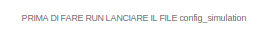
[diagram: root canvas - part 1/4, top left region]
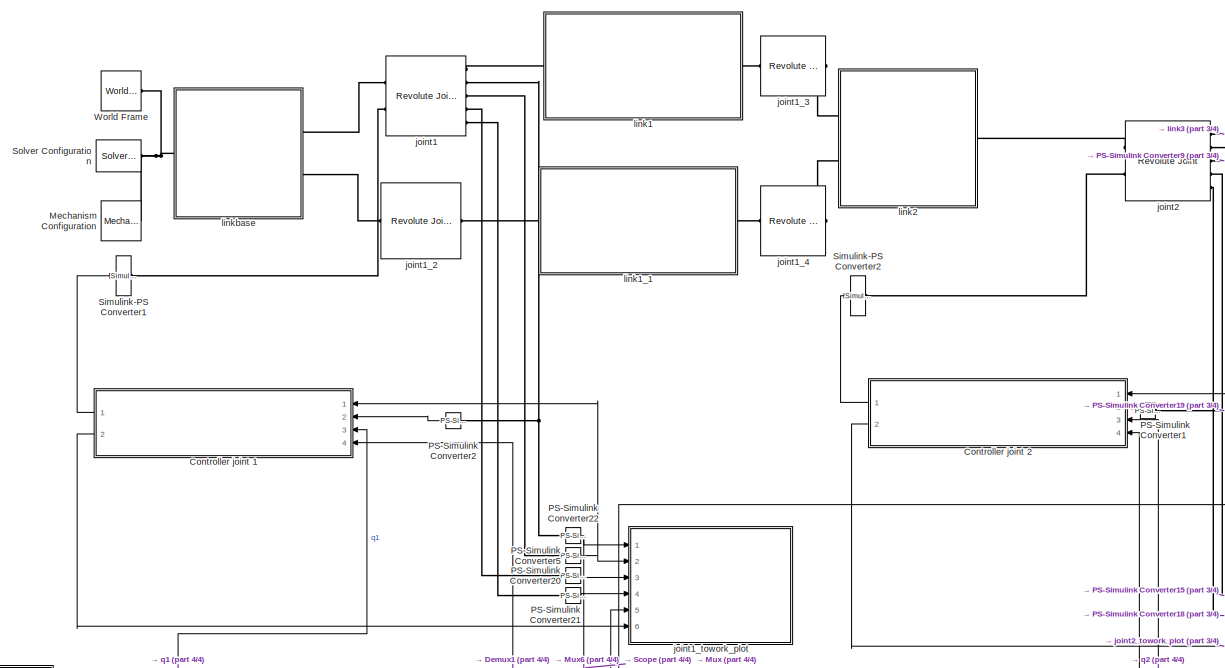
[diagram: root canvas - part 2/4, central region]
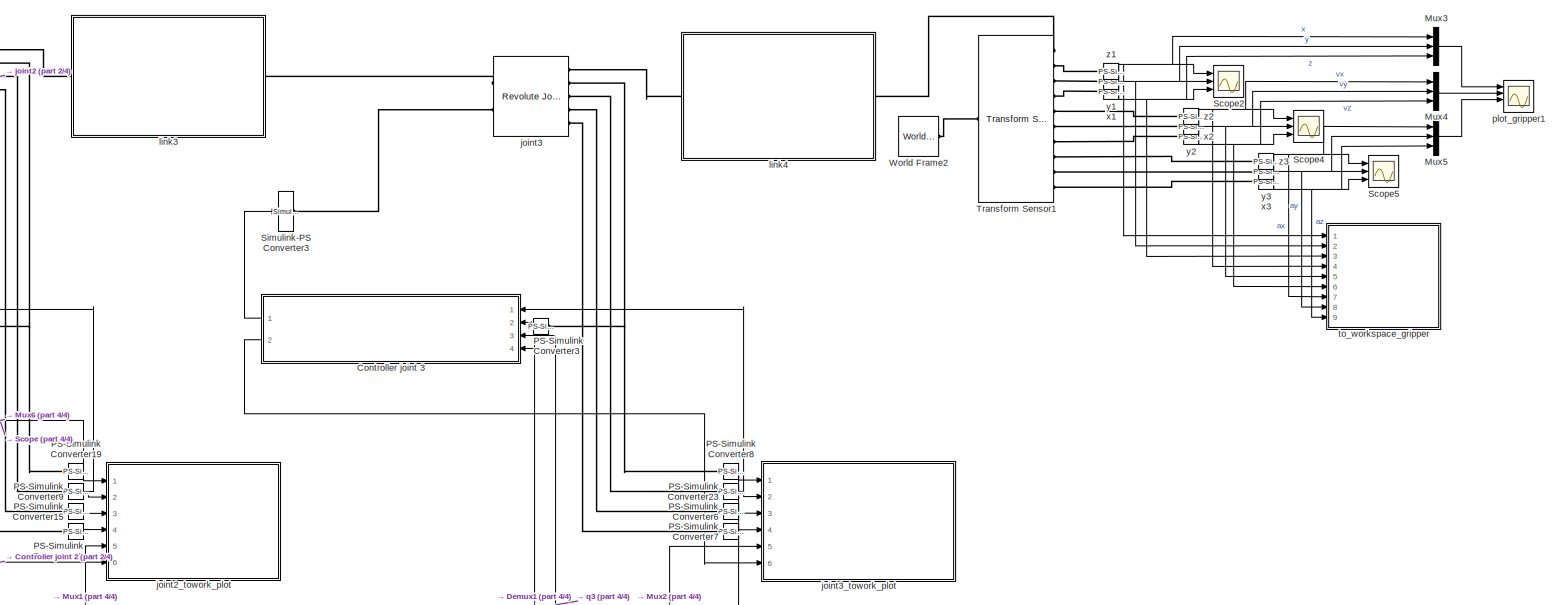
[diagram: root canvas - part 3/4, middle right region]
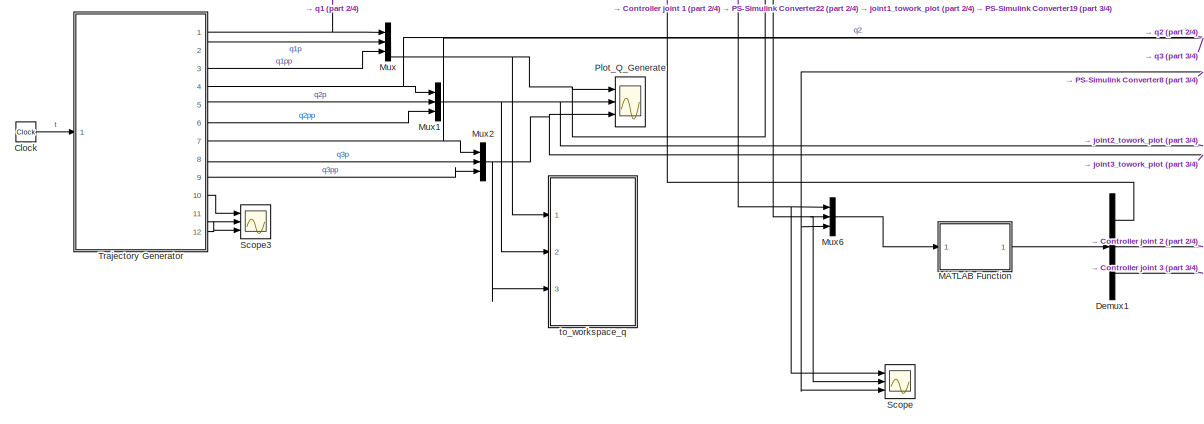
[diagram: root canvas - part 4/4, bottom left region]
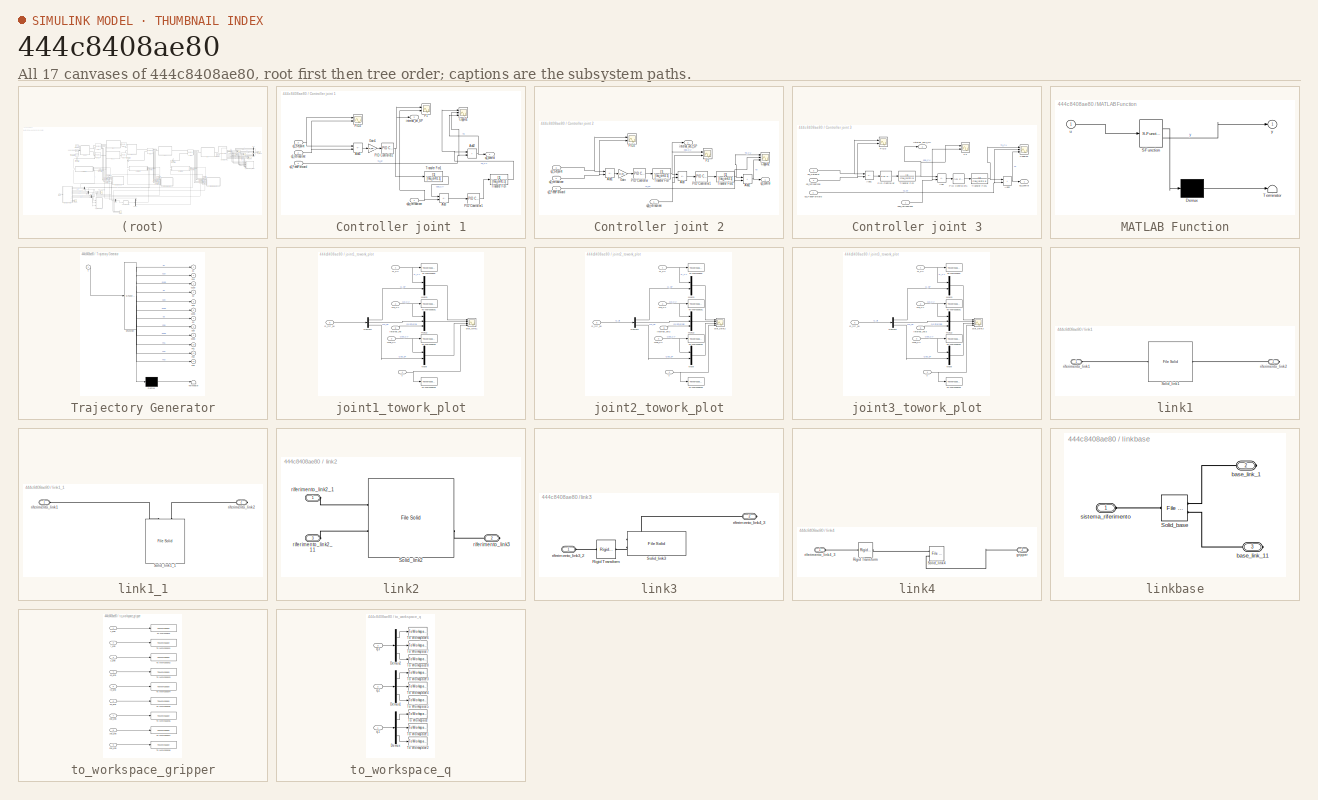
[diagram: thumbnail index - all 17 canvases of the model, root first then tree order]
MODEL slx_444c8408ae80
KIND model
CONFIG AbsTol = auto
CONFIG EnableMultiTasking = off
CONFIG FixedStep = auto
CONFIG MaxStep = 0.01
CONFIG MinStep = auto
CONFIG RelTol = 1e-12
CONFIG SampleTimeConstraint = Unconstrained
CONFIG SolverName = ode15s
CONFIG StartTime = 0.0
CONFIG StopTime = 21.3018
BLOCK [Clock] Clock
BLOCK [SubSystem] Controller joint 1
  Ports = [4, 2]
  RequestExecContextInheritance = off
BLOCK [Sum] Controller joint 1/Add
  IconShape = rectangular
  Inputs = +-
  Ports = [2, 1]
BLOCK [Sum] Controller joint 1/Add1
  IconShape = rectangular
  Inputs = +-
  Ports = [2, 1]
BLOCK [Sum] Controller joint 1/Add2
  IconShape = rectangular
  Ports = [2, 1]
BLOCK [Scope] Controller joint 1/Coppia1
  Floating = off
  NumInputPorts = 3
  Ports = [3]
  ScopeSpecificationString = Simulink.scopes.TimeScopeBlockCfg('CurrentConfiguration', extmgr.ConfigurationSet(extmgr.Configuration('Core','General UI',true),extmgr.Configuration('Core','Source UI',true),extmgr.Configuration('Sources','WiredSimulink',true,'DataLoggingVariableName','ScopeData1'),extmgr.Configuration('Visuals','Time Domain',true,'SerializedDisplays',{struct('MinYLimReal','-0.00344','MaxYLimReal','0.00087','YLab...<+1543ch>
BLOCK [Gain] Controller joint 1/Gain1
  Gain = Ke_joint1
BLOCK [Scope] Controller joint 1/P1
  Floating = off
  NumInputPorts = 2
  Ports = [2]
  ScopeSpecificationString = Simulink.scopes.TimeScopeBlockCfg('CurrentConfiguration', extmgr.ConfigurationSet(extmgr.Configuration('Core','General UI',true),extmgr.Configuration('Core','Source UI',true),extmgr.Configuration('Sources','WiredSimulink',true,'DataLoggingVariableName','ScopeData1'),extmgr.Configuration('Visuals','Time Domain',true,'SerializedDisplays',{struct('MinYLimReal','-1.4759','MaxYLimReal','1.62683','YLabe...<+1533ch>
BLOCK [Reference] Controller joint 1/PID Controller1  REF=pid_lib/PID Controller
  Ports = [1, 1]
  SourceBlock = pid_lib/PID Controller
  SourceProductBaseCode = SL
  SourceType = PID 1dof
BLOCK [Reference] Controller joint 1/PID Controller2  REF=pid_lib/PID Controller
  Ports = [1, 1]
  SourceBlock = pid_lib/PID Controller
  SourceProductBaseCode = SL
  SourceType = PID 1dof
BLOCK [Scope] Controller joint 1/PID2
  Floating = off
  NumInputPorts = 2
  Ports = [2]
  ScopeSpecificationString = Simulink.scopes.TimeScopeBlockCfg('CurrentConfiguration', extmgr.ConfigurationSet(extmgr.Configuration('Core','General UI',true,'FigureColor',[0.247058823529412 0.247058823529412 0.247058823529412]),extmgr.Configuration('Core','Source UI',true),extmgr.Configuration('Sources','WiredSimulink',true,'DataLoggingVariableName','ScopeData1'),extmgr.Configuration('Visuals','Time Domain',true,'SerializedDi...<+1434ch>
BLOCK [TransferFcn] Controller joint 1/Transfer Fcn
  Denominator = [tau_joint1 1]
BLOCK [TransferFcn] Controller joint 1/Transfer Fcn1
  Denominator = [tau_joint1 1]
BLOCK [Outport] Controller joint 1/internal_vel_SP
  Port = 2
BLOCK [Inport] Controller joint 1/q1_FeedForward
  Port = 4
BLOCK [Inport] Controller joint 1/q1_Setpoint
  Port = 3
BLOCK [Outport] Controller joint 1/q1_control
  NameLocation = top
BLOCK [Inport] Controller joint 1/q1_retroazione
  Port = 2
BLOCK [Inport] Controller joint 1/q1p_retroazione
BLOCK [SubSystem] Controller joint 2
  Ports = [4, 2]
  RequestExecContextInheritance = off
BLOCK [Sum] Controller joint 2/Add
  IconShape = rectangular
  Inputs = +-
  Ports = [2, 1]
BLOCK [Sum] Controller joint 2/Add1
  IconShape = rectangular
  Inputs = +-
  Ports = [2, 1]
BLOCK [Sum] Controller joint 2/Add2
  IconShape = rectangular
  Ports = [2, 1]
BLOCK [Scope] Controller joint 2/Coppia2
  Floating = off
  NumInputPorts = 3
  Ports = [3]
  ScopeSpecificationString = Simulink.scopes.TimeScopeBlockCfg('CurrentConfiguration', extmgr.ConfigurationSet(extmgr.Configuration('Core','General UI',true),extmgr.Configuration('Core','Source UI',true),extmgr.Configuration('Sources','WiredSimulink',true,'DataLoggingVariableName','ScopeData3'),extmgr.Configuration('Visuals','Time Domain',true,'SerializedDisplays',{struct('MinYLimReal','-0.0002','MaxYLimReal','0.00046','YLabe...<+1541ch>
BLOCK [Gain] Controller joint 2/Gain
  Gain = Ke_joint2
BLOCK [Scope] Controller joint 2/P2
  Floating = off
  NumInputPorts = 2
  Ports = [2]
  ScopeSpecificationString = Simulink.scopes.TimeScopeBlockCfg('CurrentConfiguration', extmgr.ConfigurationSet(extmgr.Configuration('Core','General UI',true),extmgr.Configuration('Core','Source UI',true),extmgr.Configuration('Sources','WiredSimulink',true,'DataLoggingVariableName','ScopeData2'),extmgr.Configuration('Visuals','Time Domain',true,'SerializedDisplays',{struct('MinYLimReal','-0.25054','MaxYLimReal','0.20773','YLab...<+1535ch>
BLOCK [Reference] Controller joint 2/PID Controller  REF=pid_lib/PID Controller
  Ports = [1, 1]
  SourceBlock = pid_lib/PID Controller
  SourceProductBaseCode = SL
  SourceType = PID 1dof
BLOCK [Reference] Controller joint 2/PID Controller1  REF=pid_lib/PID Controller
  Ports = [1, 1]
  SourceBlock = pid_lib/PID Controller
  SourceProductBaseCode = SL
  SourceType = PID 1dof
BLOCK [Scope] Controller joint 2/PID2
  Floating = off
  NumInputPorts = 2
  Ports = [2]
  ScopeSpecificationString = Simulink.scopes.TimeScopeBlockCfg('CurrentConfiguration', extmgr.ConfigurationSet(extmgr.Configuration('Core','General UI',true,'FigureColor',[0 0 0]),extmgr.Configuration('Core','Source UI',true),extmgr.Configuration('Sources','WiredSimulink',true,'DataLoggingVariableName','ScopeData1'),extmgr.Configuration('Visuals','Time Domain',true,'SerializedDisplays',{struct('MinYLimReal','-0.14139','MaxYLi...<+1659ch>
BLOCK [TransferFcn] Controller joint 2/Transfer Fcn
  Denominator = [tau_joint2 1]
BLOCK [TransferFcn] Controller joint 2/Transfer Fcn1
  Denominator = [tau_joint2 1]
BLOCK [Outport] Controller joint 2/internal_vel2_SP
  Port = 2
BLOCK [Inport] Controller joint 2/q2_FeedForward
  Port = 4
BLOCK [Inport] Controller joint 2/q2_Setpoint
  Port = 3
BLOCK [Outport] Controller joint 2/q2_control
  NameLocation = top
BLOCK [Inport] Controller joint 2/q2_retroazione
  Port = 2
BLOCK [Inport] Controller joint 2/q2p_retroazione
BLOCK [SubSystem] Controller joint 3
  Ports = [4, 2]
  RequestExecContextInheritance = off
BLOCK [Sum] Controller joint 3/Add
  IconShape = rectangular
  Inputs = +-
  Ports = [2, 1]
BLOCK [Sum] Controller joint 3/Add1
  IconShape = rectangular
  Inputs = +-
  Ports = [2, 1]
BLOCK [Sum] Controller joint 3/Add2
  IconShape = rectangular
  Ports = [2, 1]
BLOCK [Scope] Controller joint 3/Coppia3
  Floating = off
  NumInputPorts = 3
  Ports = [3]
  ScopeSpecificationString = Simulink.scopes.TimeScopeBlockCfg('CurrentConfiguration', extmgr.ConfigurationSet(extmgr.Configuration('Core','General UI',true),extmgr.Configuration('Core','Source UI',true),extmgr.Configuration('Sources','WiredSimulink',true,'DataLoggingVariableName','ScopeData6'),extmgr.Configuration('Visuals','Time Domain',true,'SerializedDisplays',{struct('MinYLimReal','-0.00023','MaxYLimReal','0.00032','YLab...<+1549ch>
BLOCK [Scope] Controller joint 3/P3
  Floating = off
  NumInputPorts = 2
  Ports = [2]
  ScopeSpecificationString = Simulink.scopes.TimeScopeBlockCfg('CurrentConfiguration', extmgr.ConfigurationSet(extmgr.Configuration('Core','General UI',true),extmgr.Configuration('Core','Source UI',true),extmgr.Configuration('Sources','WiredSimulink',true,'DataLoggingVariableName','ScopeData5'),extmgr.Configuration('Visuals','Time Domain',true,'SerializedDisplays',{struct('MinYLimReal','-0.88161','MaxYLimReal','0.51837','YLab...<+1554ch>
BLOCK [Reference] Controller joint 3/PID Controller  REF=pid_lib/PID Controller
  Ports = [1, 1]
  SourceBlock = pid_lib/PID Controller
  SourceProductBaseCode = SL
  SourceType = PID 1dof
BLOCK [Reference] Controller joint 3/PID Controller1  REF=pid_lib/PID Controller
  Ports = [1, 1]
  SourceBlock = pid_lib/PID Controller
  SourceProductBaseCode = SL
  SourceType = PID 1dof
BLOCK [Scope] Controller joint 3/PID3
  Floating = off
  NumInputPorts = 2
  Ports = [2]
  ScopeSpecificationString = Simulink.scopes.TimeScopeBlockCfg('CurrentConfiguration', extmgr.ConfigurationSet(extmgr.Configuration('Core','General UI',true),extmgr.Configuration('Core','Source UI',true),extmgr.Configuration('Sources','WiredSimulink',true,'DataLoggingVariableName','ScopeData4'),extmgr.Configuration('Visuals','Time Domain',true,'SerializedDisplays',{struct('MinYLimReal','1.16714','MaxYLimReal','2.07426','YLabe...<+1556ch>
BLOCK [TransferFcn] Controller joint 3/Transfer Fcn
  Denominator = [tau_joint3 1]
BLOCK [TransferFcn] Controller joint 3/Transfer Fcn1
  Denominator = [tau_joint3 1]
BLOCK [Outport] Controller joint 3/internal_vel3_SP
  Port = 2
BLOCK [Inport] Controller joint 3/q3_FeedForward
  Port = 4
BLOCK [Inport] Controller joint 3/q3_Setpoint
  Port = 3
BLOCK [Outport] Controller joint 3/q3_control
  NameLocation = top
BLOCK [Inport] Controller joint 3/q3_retroazione
  Port = 2
BLOCK [Inport] Controller joint 3/q3p_retroazione
BLOCK [Demux] Demux1
  Outputs = 3
  Ports = [1, 3]
BLOCK [SubSystem] MATLAB Function
  ErrorFcn = Stateflow.Translate.translate
  PermitHierarchicalResolution = ExplicitOnly
  Ports = [1, 1]
  RequestExecContextInheritance = off
  SFBlockType = MATLAB Function
  TreatAsAtomicUnit = on
BLOCK [Demux] MATLAB Function/ Demux 
  Outputs = 1
  Ports = [1, 1]
BLOCK [S-Function] MATLAB Function/ SFunction 
  EnableBusSupport = on
  FunctionName = sf_sfun
  PortCounts = [1 2]
  Ports = [1, 2]
  SFcnIsStateOwnerBlock = off
  SFunctionDeploymentMode = off
  Tag = Stateflow S-Function 1
BLOCK [Terminator] MATLAB Function/ Terminator 
BLOCK [Inport] MATLAB Function/u
BLOCK [Outport] MATLAB Function/y
BLOCK [Reference] Mechanism Configuration  REF=sm_lib/Utilities/Mechanism
Configuration
  Ports = [0, 0, 0, 0, 0, 0, 1]
  SourceBlock = sm_lib/Utilities/Mechanism\nConfiguration
  SourceProductBaseCode = MS
  SourceType = Mechanism\nConfiguration
BLOCK [Mux] Mux
  DisplayOption = bar
  Inputs = 3
  Ports = [3, 1]
BLOCK [Mux] Mux1
  DisplayOption = bar
  Inputs = 3
  Ports = [3, 1]
BLOCK [Mux] Mux2
  DisplayOption = bar
  Inputs = 3
  Ports = [3, 1]
BLOCK [Mux] Mux3
  DisplayOption = bar
  Inputs = 3
  Ports = [3, 1]
BLOCK [Mux] Mux4
  DisplayOption = bar
  Inputs = 3
  Ports = [3, 1]
BLOCK [Mux] Mux5
  DisplayOption = bar
  Inputs = 3
  Ports = [3, 1]
BLOCK [Mux] Mux6
  DisplayOption = bar
  Inputs = 3
  Ports = [3, 1]
BLOCK [Reference] PS-Simulink Converter1  REF=nesl_utility/PS-Simulink
Converter
  NameLocation = top
  Ports = [0, 1, 0, 0, 0, 1]
  SourceBlock = nesl_utility/PS-Simulink\nConverter
  SourceProductBaseCode = SS
  SourceType = PS-Simulink\nConverter
BLOCK [Reference] PS-Simulink Converter15  REF=nesl_utility/PS-Simulink
Converter
  Ports = [0, 1, 0, 0, 0, 1]
  SourceBlock = nesl_utility/PS-Simulink\nConverter
  SourceProductBaseCode = SS
  SourceType = PS-Simulink\nConverter
BLOCK [Reference] PS-Simulink Converter18  REF=nesl_utility/PS-Simulink
Converter
  Ports = [0, 1, 0, 0, 0, 1]
  SourceBlock = nesl_utility/PS-Simulink\nConverter
  SourceProductBaseCode = SS
  SourceType = PS-Simulink\nConverter
BLOCK [Reference] PS-Simulink Converter19  REF=nesl_utility/PS-Simulink
Converter
  Ports = [0, 1, 0, 0, 0, 1]
  SourceBlock = nesl_utility/PS-Simulink\nConverter
  SourceProductBaseCode = SS
  SourceType = PS-Simulink\nConverter
BLOCK [Reference] PS-Simulink Converter2  REF=nesl_utility/PS-Simulink
Converter
  NameLocation = top
  Ports = [0, 1, 0, 0, 0, 1]
  SourceBlock = nesl_utility/PS-Simulink\nConverter
  SourceProductBaseCode = SS
  SourceType = PS-Simulink\nConverter
BLOCK [Reference] PS-Simulink Converter20  REF=nesl_utility/PS-Simulink
Converter
  Ports = [0, 1, 0, 0, 0, 1]
  SourceBlock = nesl_utility/PS-Simulink\nConverter
  SourceProductBaseCode = SS
  SourceType = PS-Simulink\nConverter
BLOCK [Reference] PS-Simulink Converter21  REF=nesl_utility/PS-Simulink
Converter
  Ports = [0, 1, 0, 0, 0, 1]
  SourceBlock = nesl_utility/PS-Simulink\nConverter
  SourceProductBaseCode = SS
  SourceType = PS-Simulink\nConverter
BLOCK [Reference] PS-Simulink Converter22  REF=nesl_utility/PS-Simulink
Converter
  Ports = [0, 1, 0, 0, 0, 1]
  SourceBlock = nesl_utility/PS-Simulink\nConverter
  SourceProductBaseCode = SS
  SourceType = PS-Simulink\nConverter
BLOCK [Reference] PS-Simulink Converter23  REF=nesl_utility/PS-Simulink
Converter
  Ports = [0, 1, 0, 0, 0, 1]
  SourceBlock = nesl_utility/PS-Simulink\nConverter
  SourceProductBaseCode = SS
  SourceType = PS-Simulink\nConverter
BLOCK [Reference] PS-Simulink Converter3  REF=nesl_utility/PS-Simulink
Converter
  NameLocation = top
  Ports = [0, 1, 0, 0, 0, 1]
  SourceBlock = nesl_utility/PS-Simulink\nConverter
  SourceProductBaseCode = SS
  SourceType = PS-Simulink\nConverter
BLOCK [Reference] PS-Simulink Converter5  REF=nesl_utility/PS-Simulink
Converter
  Ports = [0, 1, 0, 0, 0, 1]
  SourceBlock = nesl_utility/PS-Simulink\nConverter
  SourceProductBaseCode = SS
  SourceType = PS-Simulink\nConverter
BLOCK [Reference] PS-Simulink Converter6  REF=nesl_utility/PS-Simulink
Converter
  Ports = [0, 1, 0, 0, 0, 1]
  SourceBlock = nesl_utility/PS-Simulink\nConverter
  SourceProductBaseCode = SS
  SourceType = PS-Simulink\nConverter
BLOCK [Reference] PS-Simulink Converter7  REF=nesl_utility/PS-Simulink
Converter
  Ports = [0, 1, 0, 0, 0, 1]
  SourceBlock = nesl_utility/PS-Simulink\nConverter
  SourceProductBaseCode = SS
  SourceType = PS-Simulink\nConverter
BLOCK [Reference] PS-Simulink Converter8  REF=nesl_utility/PS-Simulink
Converter
  Ports = [0, 1, 0, 0, 0, 1]
  SourceBlock = nesl_utility/PS-Simulink\nConverter
  SourceProductBaseCode = SS
  SourceType = PS-Simulink\nConverter
BLOCK [Reference] PS-Simulink Converter9  REF=nesl_utility/PS-Simulink
Converter
  Ports = [0, 1, 0, 0, 0, 1]
  SourceBlock = nesl_utility/PS-Simulink\nConverter
  SourceProductBaseCode = SS
  SourceType = PS-Simulink\nConverter
BLOCK [Scope] Plot_Q_Generate
  Floating = off
  NameLocation = top
  NumInputPorts = 3
  Ports = [3]
  ScopeSpecificationString = Simulink.scopes.TimeScopeBlockCfg('CurrentConfiguration', extmgr.ConfigurationSet(extmgr.Configuration('Core','General UI',true),extmgr.Configuration('Core','Source UI',true),extmgr.Configuration('Sources','WiredSimulink',true,'DataLoggingVariableName','ScopeData1','DataLoggingSaveFormat','StructureWithTime','DataLoggingMaxPoints','10000','DataLoggingLimitDataPoints',true,'DataLoggingDecimation','...<+3852ch>
BLOCK [Scope] Scope
  Floating = off
  NumInputPorts = 3
  Ports = [3]
  ScopeSpecificationString = Simulink.scopes.TimeScopeBlockCfg('CurrentConfiguration', extmgr.ConfigurationSet(extmgr.Configuration('Core','General UI',true),extmgr.Configuration('Core','Source UI',true),extmgr.Configuration('Sources','WiredSimulink',true,'DataLoggingVariableName','ScopeData1'),extmgr.Configuration('Visuals','Time Domain',true,'SerializedDisplays',{struct('MinYLimReal','-0.63201','MaxYLimReal','2.27421','YLab...<+1504ch>
BLOCK [Scope] Scope2
  Floating = off
  NumInputPorts = 3
  Ports = [3]
  ScopeSpecificationString = Simulink.scopes.TimeScopeBlockCfg('CurrentConfiguration', extmgr.ConfigurationSet(extmgr.Configuration('Core','General UI',true),extmgr.Configuration('Core','Source UI',true),extmgr.Configuration('Sources','WiredSimulink',true,'DataLoggingVariableName','ScopeData2'),extmgr.Configuration('Visuals','Time Domain',true,'SerializedDisplays',{struct('MinYLimReal','-1.16935','MaxYLimReal','1.19866','YLab...<+1472ch>
BLOCK [Scope] Scope3
  Floating = off
  NumInputPorts = 3
  Ports = [3]
  ScopeSpecificationString = Simulink.scopes.TimeScopeBlockCfg('CurrentConfiguration', extmgr.ConfigurationSet(extmgr.Configuration('Core','General UI',true),extmgr.Configuration('Core','Source UI',true),extmgr.Configuration('Sources','WiredSimulink',true,'DataLoggingVariableName','ScopeData3'),extmgr.Configuration('Visuals','Time Domain',true,'SerializedDisplays',{struct('MinYLimReal','-0.00278','MaxYLimReal','0.00051','YLab...<+1485ch>
BLOCK [Scope] Scope4
  Floating = off
  NumInputPorts = 3
  Ports = [3]
  ScopeSpecificationString = Simulink.scopes.TimeScopeBlockCfg('CurrentConfiguration', extmgr.ConfigurationSet(extmgr.Configuration('Core','General UI',true),extmgr.Configuration('Core','Source UI',true),extmgr.Configuration('Sources','WiredSimulink',true,'DataLoggingVariableName','ScopeData4'),extmgr.Configuration('Visuals','Time Domain',true,'SerializedDisplays',{struct('MinYLimReal','-1.16935','MaxYLimReal','1.19866','YLab...<+1469ch>
BLOCK [Scope] Scope5
  Floating = off
  NumInputPorts = 3
  Ports = [3]
  ScopeSpecificationString = Simulink.scopes.TimeScopeBlockCfg('CurrentConfiguration', extmgr.ConfigurationSet(extmgr.Configuration('Core','General UI',true),extmgr.Configuration('Core','Source UI',true),extmgr.Configuration('Sources','WiredSimulink',true,'DataLoggingVariableName','ScopeData5'),extmgr.Configuration('Visuals','Time Domain',true,'SerializedDisplays',{struct('MinYLimReal','-167.40944','MaxYLimReal','212.2559','Y...<+1480ch>
BLOCK [Reference] Simulink-PS Converter1  REF=nesl_utility/Simulink-PS
Converter
  Ports = [1, 0, 0, 0, 0, 0, 1]
  SourceBlock = nesl_utility/Simulink-PS\nConverter
  SourceProductBaseCode = SS
  SourceType = Simulink-PS\nConverter
BLOCK [Reference] Simulink-PS Converter2  REF=nesl_utility/Simulink-PS
Converter
  Ports = [1, 0, 0, 0, 0, 0, 1]
  SourceBlock = nesl_utility/Simulink-PS\nConverter
  SourceProductBaseCode = SS
  SourceType = Simulink-PS\nConverter
BLOCK [Reference] Simulink-PS Converter3  REF=nesl_utility/Simulink-PS
Converter
  Ports = [1, 0, 0, 0, 0, 0, 1]
  SourceBlock = nesl_utility/Simulink-PS\nConverter
  SourceProductBaseCode = SS
  SourceType = Simulink-PS\nConverter
BLOCK [Reference] Solver Configuration  REF=nesl_utility/Solver
Configuration
  Ports = [0, 0, 0, 0, 0, 0, 1]
  SourceBlock = nesl_utility/Solver\nConfiguration
  SourceProductBaseCode = SS
  SourceType = Solver\nConfiguration
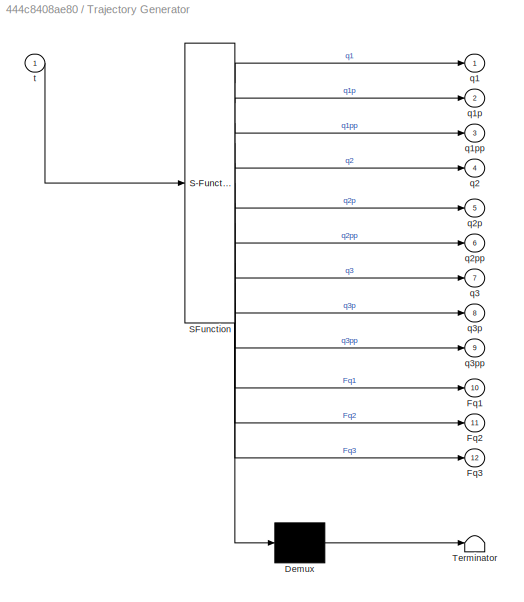
BLOCK [SubSystem] Trajectory Generator
  ErrorFcn = Stateflow.Translate.translate
  PermitHierarchicalResolution = ExplicitOnly
  Ports = [1, 12]
  RequestExecContextInheritance = off
  SFBlockType = MATLAB Function
  TreatAsAtomicUnit = on
BLOCK [Demux] Trajectory Generator/ Demux 
  Outputs = 1
  Ports = [1, 1]
BLOCK [S-Function] Trajectory Generator/ SFunction 
  EnableBusSupport = on
  FunctionName = sf_sfun
  Parameters = Fq_interp,Q_interp,Qp_interp,Qpp_interp,dT_target
  PortCounts = [1 13]
  Ports = [1, 13]
  SFcnIsStateOwnerBlock = off
  SFunctionDeploymentMode = off
  Tag = Stateflow S-Function 2
BLOCK [Terminator] Trajectory Generator/ Terminator 
BLOCK [Outport] Trajectory Generator/Fq1
  Port = 10
BLOCK [Outport] Trajectory Generator/Fq2
  Port = 11
BLOCK [Outport] Trajectory Generator/Fq3
  Port = 12
BLOCK [Outport] Trajectory Generator/q1
BLOCK [Outport] Trajectory Generator/q1p
  Port = 2
BLOCK [Outport] Trajectory Generator/q1pp
  Port = 3
BLOCK [Outport] Trajectory Generator/q2
  Port = 4
BLOCK [Outport] Trajectory Generator/q2p
  Port = 5
BLOCK [Outport] Trajectory Generator/q2pp
  Port = 6
BLOCK [Outport] Trajectory Generator/q3
  Port = 7
BLOCK [Outport] Trajectory Generator/q3p
  Port = 8
BLOCK [Outport] Trajectory Generator/q3pp
  Port = 9
BLOCK [Inport] Trajectory Generator/t
BLOCK [Reference] Transform Sensor1  REF=sm_lib/Frames and
Transforms/Transform
Sensor
  Ports = [0, 0, 0, 0, 0, 1, 10]
  SourceBlock = sm_lib/Frames and\nTransforms/Transform\nSensor
  SourceProductBaseCode = MS
  SourceType = Transform\nSensor
BLOCK [Reference] World Frame  REF=sm_lib/Frames and
Transforms/World Frame
  Ports = [0, 0, 0, 0, 0, 0, 1]
  SourceBlock = sm_lib/Frames and\nTransforms/World Frame
  SourceProductBaseCode = MS
  SourceType = World Frame
BLOCK [Reference] World Frame2  REF=sm_lib/Frames and
Transforms/World Frame
  NameLocation = top
  Ports = [0, 0, 0, 0, 0, 0, 1]
  SourceBlock = sm_lib/Frames and\nTransforms/World Frame
  SourceProductBaseCode = MS
  SourceType = World Frame
BLOCK [Reference] joint1  REF=sm_lib/Joints/Revolute Joint
  Ports = [0, 0, 0, 0, 0, 2, 5]
  SourceBlock = sm_lib/Joints/Revolute Joint
  SourceProductBaseCode = MS
  SourceType = Revolute Joint
BLOCK [Reference] joint1_2  REF=sm_lib/Joints/Revolute Joint
  Ports = [0, 0, 0, 0, 0, 1, 1]
  SourceBlock = sm_lib/Joints/Revolute Joint
  SourceProductBaseCode = MS
  SourceType = Revolute Joint
BLOCK [Reference] joint1_3  REF=sm_lib/Joints/Revolute Joint
  Ports = [0, 0, 0, 0, 0, 1, 1]
  SourceBlock = sm_lib/Joints/Revolute Joint
  SourceProductBaseCode = MS
  SourceType = Revolute Joint
BLOCK [Reference] joint1_4  REF=sm_lib/Joints/Revolute Joint
  Ports = [0, 0, 0, 0, 0, 1, 1]
  SourceBlock = sm_lib/Joints/Revolute Joint
  SourceProductBaseCode = MS
  SourceType = Revolute Joint
BLOCK [SubSystem] joint1_towork_plot
  Ports = [6]
  RequestExecContextInheritance = off
BLOCK [Demux] joint1_towork_plot/Demux1
  Outputs = 3
  Ports = [1, 3]
BLOCK [Mux] joint1_towork_plot/Mux12
  DisplayOption = bar
  Inputs = 3
  Ports = [3, 1]
BLOCK [Mux] joint1_towork_plot/Mux13
  DisplayOption = bar
  Inputs = 2
  Ports = [2, 1]
BLOCK [Mux] joint1_towork_plot/Mux9
  DisplayOption = bar
  Inputs = 2
  Ports = [2, 1]
BLOCK [Inport] joint1_towork_plot/Q_CV
BLOCK [Inport] joint1_towork_plot/Q_SP_all
  Port = 5
BLOCK [Inport] joint1_towork_plot/Qp_CV
  Port = 2
BLOCK [Inport] joint1_towork_plot/Qpp_CV
  Port = 3
BLOCK [Inport] joint1_towork_plot/T
  Port = 4
BLOCK [ToWorkspace] joint1_towork_plot/To Workspace
  FixptAsFi = on
  MaxDataPoints = inf
  Ports = [1]
  SampleTime = -1
  SaveFormat = Timeseries
  VariableName = q1_result
BLOCK [ToWorkspace] joint1_towork_plot/To Workspace1
  FixptAsFi = on
  MaxDataPoints = inf
  Ports = [1]
  SampleTime = -1
  SaveFormat = Timeseries
  VariableName = q1p_result
BLOCK [ToWorkspace] joint1_towork_plot/To Workspace2
  FixptAsFi = on
  MaxDataPoints = inf
  Ports = [1]
  SampleTime = -1
  SaveFormat = Timeseries
  VariableName = q1pp_result
BLOCK [ToWorkspace] joint1_towork_plot/To Workspace3
  FixptAsFi = on
  MaxDataPoints = inf
  Ports = [1]
  SampleTime = -1
  SaveFormat = Timeseries
  VariableName = t1_result
BLOCK [Inport] joint1_towork_plot/internal_vel
  Port = 6
BLOCK [Scope] joint1_towork_plot/plot_joint1
  Floating = off
  NumInputPorts = 4
  Ports = [4]
  ScopeSpecificationString = Simulink.scopes.TimeScopeBlockCfg('CurrentConfiguration', extmgr.ConfigurationSet(extmgr.Configuration('Core','General UI',true),extmgr.Configuration('Core','Source UI',true),extmgr.Configuration('Sources','WiredSimulink',true,'DataLoggingVariableName','ScopeData1'),extmgr.Configuration('Visuals','Time Domain',true,'SerializedDisplays',{struct('MinYLimReal','-0.41064','MaxYLimReal','0.31113','YLab...<+3727ch>
BLOCK [Reference] joint2  REF=sm_lib/Joints/Revolute Joint
  Ports = [0, 0, 0, 0, 0, 2, 5]
  SourceBlock = sm_lib/Joints/Revolute Joint
  SourceProductBaseCode = MS
  SourceType = Revolute Joint
BLOCK [SubSystem] joint2_towork_plot
  Ports = [6]
  RequestExecContextInheritance = off
BLOCK [Demux] joint2_towork_plot/Demux1
  Outputs = 3
  Ports = [1, 3]
BLOCK [Mux] joint2_towork_plot/Mux12
  DisplayOption = bar
  Inputs = 3
  Ports = [3, 1]
BLOCK [Mux] joint2_towork_plot/Mux13
  DisplayOption = bar
  Inputs = 2
  Ports = [2, 1]
BLOCK [Mux] joint2_towork_plot/Mux9
  DisplayOption = bar
  Inputs = 2
  Ports = [2, 1]
BLOCK [Inport] joint2_towork_plot/Q_CV
BLOCK [Inport] joint2_towork_plot/Q_SP_all
  Port = 5
BLOCK [Inport] joint2_towork_plot/Qp_CV
  Port = 2
BLOCK [Inport] joint2_towork_plot/Qpp_CV
  Port = 3
BLOCK [Inport] joint2_towork_plot/T
  Port = 4
BLOCK [ToWorkspace] joint2_towork_plot/To Workspace
  FixptAsFi = on
  MaxDataPoints = inf
  Ports = [1]
  SampleTime = -1
  SaveFormat = Timeseries
  VariableName = q2_result
BLOCK [ToWorkspace] joint2_towork_plot/To Workspace1
  FixptAsFi = on
  MaxDataPoints = inf
  Ports = [1]
  SampleTime = -1
  SaveFormat = Timeseries
  VariableName = q2p_result
BLOCK [ToWorkspace] joint2_towork_plot/To Workspace2
  FixptAsFi = on
  MaxDataPoints = inf
  Ports = [1]
  SampleTime = -1
  SaveFormat = Timeseries
  VariableName = q2pp_result
BLOCK [ToWorkspace] joint2_towork_plot/To Workspace3
  FixptAsFi = on
  MaxDataPoints = inf
  Ports = [1]
  SampleTime = -1
  SaveFormat = Timeseries
  VariableName = t2_result
BLOCK [Inport] joint2_towork_plot/internal_vel2
  Port = 6
BLOCK [Scope] joint2_towork_plot/plot_joint2
  Floating = off
  NumInputPorts = 4
  Ports = [4]
  ScopeSpecificationString = Simulink.scopes.TimeScopeBlockCfg('CurrentConfiguration', extmgr.ConfigurationSet(extmgr.Configuration('Core','General UI',true),extmgr.Configuration('Core','Source UI',true),extmgr.Configuration('Sources','WiredSimulink',true,'DataLoggingVariableName','ScopeData1'),extmgr.Configuration('Visuals','Time Domain',true,'SerializedDisplays',{struct('MinYLimReal','-1.00000','MaxYLimReal','1.00000','YLab...<+3614ch>
BLOCK [Reference] joint3  REF=sm_lib/Joints/Revolute Joint
  Ports = [0, 0, 0, 0, 0, 2, 5]
  SourceBlock = sm_lib/Joints/Revolute Joint
  SourceProductBaseCode = MS
  SourceType = Revolute Joint
BLOCK [SubSystem] joint3_towork_plot
  Ports = [6]
  RequestExecContextInheritance = off
BLOCK [Demux] joint3_towork_plot/Demux1
  Outputs = 3
  Ports = [1, 3]
BLOCK [Mux] joint3_towork_plot/Mux12
  DisplayOption = bar
  Inputs = 3
  Ports = [3, 1]
BLOCK [Mux] joint3_towork_plot/Mux13
  DisplayOption = bar
  Inputs = 2
  Ports = [2, 1]
BLOCK [Mux] joint3_towork_plot/Mux9
  DisplayOption = bar
  Inputs = 2
  Ports = [2, 1]
BLOCK [Inport] joint3_towork_plot/Q_CV
BLOCK [Inport] joint3_towork_plot/Q_SP_all
  Port = 5
BLOCK [Inport] joint3_towork_plot/Qp_CV
  Port = 2
BLOCK [Inport] joint3_towork_plot/Qpp_CV
  Port = 3
BLOCK [Inport] joint3_towork_plot/T
  Port = 4
BLOCK [ToWorkspace] joint3_towork_plot/To Workspace
  FixptAsFi = on
  MaxDataPoints = inf
  Ports = [1]
  SampleTime = -1
  SaveFormat = Timeseries
  VariableName = q3_result
BLOCK [ToWorkspace] joint3_towork_plot/To Workspace1
  FixptAsFi = on
  MaxDataPoints = inf
  Ports = [1]
  SampleTime = -1
  SaveFormat = Timeseries
  VariableName = q3p_result
BLOCK [ToWorkspace] joint3_towork_plot/To Workspace2
  FixptAsFi = on
  MaxDataPoints = inf
  Ports = [1]
  SampleTime = -1
  SaveFormat = Timeseries
  VariableName = q3pp_result
BLOCK [ToWorkspace] joint3_towork_plot/To Workspace3
  FixptAsFi = on
  MaxDataPoints = inf
  Ports = [1]
  SampleTime = -1
  SaveFormat = Timeseries
  VariableName = t3_result
BLOCK [Inport] joint3_towork_plot/internal_vel3
  Port = 6
BLOCK [Scope] joint3_towork_plot/plot_joint3
  Floating = off
  NumInputPorts = 4
  Ports = [4]
  ScopeSpecificationString = Simulink.scopes.TimeScopeBlockCfg('CurrentConfiguration', extmgr.ConfigurationSet(extmgr.Configuration('Core','General UI',true),extmgr.Configuration('Core','Source UI',true),extmgr.Configuration('Sources','WiredSimulink',true,'DataLoggingVariableName','ScopeData1'),extmgr.Configuration('Visuals','Time Domain',true,'SerializedDisplays',{struct('MinYLimReal','1.66135','MaxYLimReal','1.91244','YLabe...<+3620ch>
BLOCK [SubSystem] link1
  Ports = [0, 0, 0, 0, 0, 1, 1]
  RequestExecContextInheritance = off
BLOCK [Reference] link1/Solid_link1  REF=sm_lib/Body Elements/File Solid
  Ports = [0, 0, 0, 0, 0, 1, 1]
  SourceBlock = sm_lib/Body Elements/File Solid
  SourceProductBaseCode = MS
  SourceType = File Solid
BLOCK [PMIOPort] link1/riferimento_link1
  Side = Left
BLOCK [PMIOPort] link1/riferimento_link2
  Port = 2
  Side = Right
BLOCK [SubSystem] link1_1
  Ports = [0, 0, 0, 0, 0, 1, 1]
  RequestExecContextInheritance = off
BLOCK [Reference] link1_1/Solid_link1_1  REF=sm_lib/Body Elements/File Solid
  NameLocation = left
  Ports = [0, 0, 0, 0, 0, 2, 1]
  SourceBlock = sm_lib/Body Elements/File Solid
  SourceProductBaseCode = MS
  SourceType = File Solid
BLOCK [PMIOPort] link1_1/riferimento_link1
  Side = Left
BLOCK [PMIOPort] link1_1/riferimento_link2
  Port = 2
  Side = Right
BLOCK [SubSystem] link2
  Ports = [0, 0, 0, 0, 0, 2, 1]
  RequestExecContextInheritance = off
BLOCK [Reference] link2/Solid_link2  REF=sm_lib/Body Elements/File Solid
  Ports = [0, 0, 0, 0, 0, 2, 2]
  SourceBlock = sm_lib/Body Elements/File Solid
  SourceProductBaseCode = MS
  SourceType = File Solid
BLOCK [PMIOPort] link2/riferimento_link2_1
  Side = Left
BLOCK [PMIOPort] link2/riferimento_link2_11
  Port = 3
  Side = Left
BLOCK [PMIOPort] link2/riferimento_link3
  Port = 2
  Side = Right
BLOCK [SubSystem] link3
  Ports = [0, 0, 0, 0, 0, 1, 1]
  RequestExecContextInheritance = off
BLOCK [Reference] link3/Rigid Transform  REF=sm_lib/Frames and
Transforms/Rigid
Transform
  Ports = [0, 0, 0, 0, 0, 1, 1]
  SourceBlock = sm_lib/Frames and\nTransforms/Rigid\nTransform
  SourceProductBaseCode = MS
  SourceType = Rigid\nTransform
BLOCK [Reference] link3/Solid_link3  REF=sm_lib/Body Elements/File Solid
  Ports = [0, 0, 0, 0, 0, 2, 1]
  SourceBlock = sm_lib/Body Elements/File Solid
  SourceProductBaseCode = MS
  SourceType = File Solid
BLOCK [PMIOPort] link3/riferimento_link3_2
  Side = Left
BLOCK [PMIOPort] link3/riferimento_link4_3
  Port = 2
  Side = Right
BLOCK [SubSystem] link4
  Ports = [0, 0, 0, 0, 0, 1, 1]
  RequestExecContextInheritance = off
BLOCK [Reference] link4/Rigid Transform  REF=sm_lib/Frames and
Transforms/Rigid
Transform
  Ports = [0, 0, 0, 0, 0, 1, 1]
  SourceBlock = sm_lib/Frames and\nTransforms/Rigid\nTransform
  SourceProductBaseCode = MS
  SourceType = Rigid\nTransform
BLOCK [Reference] link4/Solid_link4  REF=sm_lib/Body Elements/File Solid
  Ports = [0, 0, 0, 0, 0, 2, 1]
  SourceBlock = sm_lib/Body Elements/File Solid
  SourceProductBaseCode = MS
  SourceType = File Solid
BLOCK [PMIOPort] link4/gripper
  Port = 2
  Side = Right
BLOCK [PMIOPort] link4/riferimento_link4_3
  Side = Left
BLOCK [SubSystem] linkbase
  Ports = [0, 0, 0, 0, 0, 1, 2]
  RequestExecContextInheritance = off
BLOCK [Reference] linkbase/Solid_base  REF=sm_lib/Body Elements/File Solid
  NameLocation = top
  Ports = [0, 0, 0, 0, 0, 2, 1]
  SourceBlock = sm_lib/Body Elements/File Solid
  SourceProductBaseCode = MS
  SourceType = File Solid
BLOCK [PMIOPort] linkbase/base_link_1
  Port = 2
  Side = Right
BLOCK [PMIOPort] linkbase/base_link_11
  Port = 3
  Side = Right
BLOCK [PMIOPort] linkbase/sistema_riferimento
  Side = Left
BLOCK [Scope] plot_gripper1
  Floating = off
  NumInputPorts = 4
  Ports = [4]
  ScopeSpecificationString = Simulink.scopes.TimeScopeBlockCfg('CurrentConfiguration', extmgr.ConfigurationSet(extmgr.Configuration('Core','General UI',true),extmgr.Configuration('Core','Source UI',true),extmgr.Configuration('Sources','WiredSimulink',true,'DataLoggingVariableName','ScopeData1'),extmgr.Configuration('Visuals','Time Domain',true,'SerializedDisplays',{struct('MinYLimReal','-0.02266','MaxYLimReal','0.10335','YLab...<+3683ch>
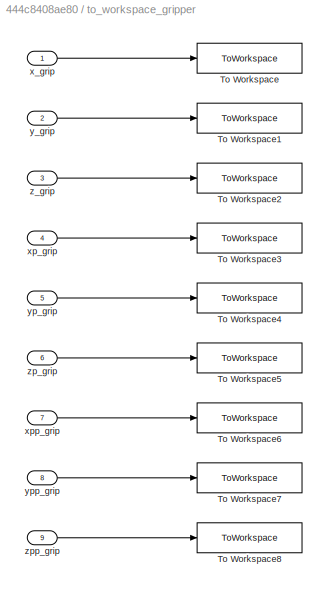
BLOCK [SubSystem] to_workspace_gripper
  Ports = [9]
  RequestExecContextInheritance = off
BLOCK [ToWorkspace] to_workspace_gripper/To Workspace
  FixptAsFi = on
  MaxDataPoints = inf
  Ports = [1]
  SampleTime = -1
  SaveFormat = Timeseries
  VariableName = x_grip_result
BLOCK [ToWorkspace] to_workspace_gripper/To Workspace1
  FixptAsFi = on
  MaxDataPoints = inf
  Ports = [1]
  SampleTime = -1
  SaveFormat = Timeseries
  VariableName = y_grip_result
BLOCK [ToWorkspace] to_workspace_gripper/To Workspace2
  FixptAsFi = on
  MaxDataPoints = inf
  Ports = [1]
  SampleTime = -1
  SaveFormat = Timeseries
  VariableName = z_grip_result
BLOCK [ToWorkspace] to_workspace_gripper/To Workspace3
  FixptAsFi = on
  MaxDataPoints = inf
  Ports = [1]
  SampleTime = -1
  SaveFormat = Timeseries
  VariableName = xp_grip_result
BLOCK [ToWorkspace] to_workspace_gripper/To Workspace4
  FixptAsFi = on
  MaxDataPoints = inf
  Ports = [1]
  SampleTime = -1
  SaveFormat = Timeseries
  VariableName = yp_grip_result
BLOCK [ToWorkspace] to_workspace_gripper/To Workspace5
  FixptAsFi = on
  MaxDataPoints = inf
  Ports = [1]
  SampleTime = -1
  SaveFormat = Timeseries
  VariableName = zp_grip_result
BLOCK [ToWorkspace] to_workspace_gripper/To Workspace6
  FixptAsFi = on
  MaxDataPoints = inf
  Ports = [1]
  SampleTime = -1
  SaveFormat = Timeseries
  VariableName = xpp_grip_result
BLOCK [ToWorkspace] to_workspace_gripper/To Workspace7
  FixptAsFi = on
  MaxDataPoints = inf
  Ports = [1]
  SampleTime = -1
  SaveFormat = Timeseries
  VariableName = ypp_grip_result
BLOCK [ToWorkspace] to_workspace_gripper/To Workspace8
  FixptAsFi = on
  MaxDataPoints = inf
  Ports = [1]
  SampleTime = -1
  SaveFormat = Timeseries
  VariableName = zpp_grip_result
BLOCK [Inport] to_workspace_gripper/x_grip
BLOCK [Inport] to_workspace_gripper/xp_grip
  Port = 4
BLOCK [Inport] to_workspace_gripper/xpp_grip
  Port = 7
BLOCK [Inport] to_workspace_gripper/y_grip
  Port = 2
BLOCK [Inport] to_workspace_gripper/yp_grip
  Port = 5
BLOCK [Inport] to_workspace_gripper/ypp_grip
  Port = 8
BLOCK [Inport] to_workspace_gripper/z_grip
  Port = 3
BLOCK [Inport] to_workspace_gripper/zp_grip
  Port = 6
BLOCK [Inport] to_workspace_gripper/zpp_grip
  Port = 9
BLOCK [SubSystem] to_workspace_q
  NameLocation = left
  Ports = [3]
  RequestExecContextInheritance = off
BLOCK [Demux] to_workspace_q/Demux
  Outputs = 3
  Ports = [1, 3]
BLOCK [Demux] to_workspace_q/Demux1
  Outputs = 3
  Ports = [1, 3]
BLOCK [Demux] to_workspace_q/Demux2
  Outputs = 3
  Ports = [1, 3]
BLOCK [ToWorkspace] to_workspace_q/To Workspace
  FixptAsFi = on
  MaxDataPoints = inf
  Ports = [1]
  SampleTime = -1
  SaveFormat = Timeseries
  VariableName = q1
BLOCK [ToWorkspace] to_workspace_q/To Workspace1
  FixptAsFi = on
  MaxDataPoints = inf
  Ports = [1]
  SampleTime = -1
  SaveFormat = Timeseries
  VariableName = q1p
BLOCK [ToWorkspace] to_workspace_q/To Workspace2
  FixptAsFi = on
  MaxDataPoints = inf
  Ports = [1]
  SampleTime = -1
  SaveFormat = Timeseries
  VariableName = q1pp
BLOCK [ToWorkspace] to_workspace_q/To Workspace3
  FixptAsFi = on
  MaxDataPoints = inf
  Ports = [1]
  SampleTime = -1
  SaveFormat = Timeseries
  VariableName = q2
BLOCK [ToWorkspace] to_workspace_q/To Workspace4
  FixptAsFi = on
  MaxDataPoints = inf
  Ports = [1]
  SampleTime = -1
  SaveFormat = Timeseries
  VariableName = q2p
BLOCK [ToWorkspace] to_workspace_q/To Workspace5
  FixptAsFi = on
  MaxDataPoints = inf
  Ports = [1]
  SampleTime = -1
  SaveFormat = Timeseries
  VariableName = q2pp
BLOCK [ToWorkspace] to_workspace_q/To Workspace6
  FixptAsFi = on
  MaxDataPoints = inf
  Ports = [1]
  SampleTime = -1
  SaveFormat = Timeseries
  VariableName = q3
BLOCK [ToWorkspace] to_workspace_q/To Workspace7
  FixptAsFi = on
  MaxDataPoints = inf
  Ports = [1]
  SampleTime = -1
  SaveFormat = Timeseries
  VariableName = q3p
BLOCK [ToWorkspace] to_workspace_q/To Workspace8
  FixptAsFi = on
  MaxDataPoints = inf
  Ports = [1]
  SampleTime = -1
  SaveFormat = Timeseries
  VariableName = q3pp
BLOCK [Inport] to_workspace_q/q1
BLOCK [Inport] to_workspace_q/q2
  Port = 2
BLOCK [Inport] to_workspace_q/q3
  Port = 3
BLOCK [Reference] x1  REF=nesl_utility/PS-Simulink
Converter
  Ports = [0, 1, 0, 0, 0, 1]
  SourceBlock = nesl_utility/PS-Simulink\nConverter
  SourceProductBaseCode = SS
  SourceType = PS-Simulink\nConverter
BLOCK [Reference] x2  REF=nesl_utility/PS-Simulink
Converter
  Ports = [0, 1, 0, 0, 0, 1]
  SourceBlock = nesl_utility/PS-Simulink\nConverter
  SourceProductBaseCode = SS
  SourceType = PS-Simulink\nConverter
BLOCK [Reference] x3  REF=nesl_utility/PS-Simulink
Converter
  Ports = [0, 1, 0, 0, 0, 1]
  SourceBlock = nesl_utility/PS-Simulink\nConverter
  SourceProductBaseCode = SS
  SourceType = PS-Simulink\nConverter
BLOCK [Reference] y1  REF=nesl_utility/PS-Simulink
Converter
  Ports = [0, 1, 0, 0, 0, 1]
  SourceBlock = nesl_utility/PS-Simulink\nConverter
  SourceProductBaseCode = SS
  SourceType = PS-Simulink\nConverter
BLOCK [Reference] y2  REF=nesl_utility/PS-Simulink
Converter
  Ports = [0, 1, 0, 0, 0, 1]
  SourceBlock = nesl_utility/PS-Simulink\nConverter
  SourceProductBaseCode = SS
  SourceType = PS-Simulink\nConverter
BLOCK [Reference] y3  REF=nesl_utility/PS-Simulink
Converter
  Ports = [0, 1, 0, 0, 0, 1]
  SourceBlock = nesl_utility/PS-Simulink\nConverter
  SourceProductBaseCode = SS
  SourceType = PS-Simulink\nConverter
BLOCK [Reference] z1  REF=nesl_utility/PS-Simulink
Converter
  Ports = [0, 1, 0, 0, 0, 1]
  SourceBlock = nesl_utility/PS-Simulink\nConverter
  SourceProductBaseCode = SS
  SourceType = PS-Simulink\nConverter
BLOCK [Reference] z2  REF=nesl_utility/PS-Simulink
Converter
  Ports = [0, 1, 0, 0, 0, 1]
  SourceBlock = nesl_utility/PS-Simulink\nConverter
  SourceProductBaseCode = SS
  SourceType = PS-Simulink\nConverter
BLOCK [Reference] z3  REF=nesl_utility/PS-Simulink
Converter
  Ports = [0, 1, 0, 0, 0, 1]
  SourceBlock = nesl_utility/PS-Simulink\nConverter
  SourceProductBaseCode = SS
  SourceType = PS-Simulink\nConverter
ANNOTATION (root): PRIMA DI FARE RUN LANCIARE IL FILE config_simulation
LINE Clock:1 -> Trajectory Generator:1
LINE Controller joint 1/Add1:1 -> Controller joint 1/Gain1:1
NET Controller joint 1/Add2:1 -> Controller joint 1/Coppia1:3, Controller joint 1/q1_control:1
LINE Controller joint 1/Add:1 -> Controller joint 1/PID Controller1:1
LINE Controller joint 1/Gain1:1 -> Controller joint 1/PID Controller2:1
LINE Controller joint 1/PID Controller1:1 -> Controller joint 1/Transfer Fcn:1
NET Controller joint 1/PID Controller2:1 -> Controller joint 1/P1:1, Controller joint 1/Transfer Fcn1:1, Controller joint 1/internal_vel_SP:1
LINE Controller joint 1/Transfer Fcn1:1 -> Controller joint 1/Add:1
NET Controller joint 1/Transfer Fcn:1 -> Controller joint 1/Add2:1, Controller joint 1/Coppia1:1
NET Controller joint 1/q1_FeedForward:1 -> Controller joint 1/Add2:2, Controller joint 1/Coppia1:2
NET Controller joint 1/q1_Setpoint:1 -> Controller joint 1/Add1:1, Controller joint 1/PID2:1
NET Controller joint 1/q1_retroazione:1 -> Controller joint 1/Add1:2, Controller joint 1/PID2:2
NET Controller joint 1/q1p_retroazione:1 -> Controller joint 1/Add:2, Controller joint 1/P1:2
LINE Controller joint 1:1 -> Simulink-PS Converter1:1
LINE Controller joint 1:2 -> joint1_towork_plot:6
LINE Controller joint 2/Add1:1 -> Controller joint 2/Gain:1
NET Controller joint 2/Add2:1 -> Controller joint 2/Coppia2:3, Controller joint 2/q2_control:1
LINE Controller joint 2/Add:1 -> Controller joint 2/PID Controller1:1
LINE Controller joint 2/Gain:1 -> Controller joint 2/PID Controller:1
LINE Controller joint 2/PID Controller1:1 -> Controller joint 2/Transfer Fcn1:1
LINE Controller joint 2/PID Controller:1 -> Controller joint 2/Transfer Fcn:1
NET Controller joint 2/Transfer Fcn1:1 -> Controller joint 2/Add2:1, Controller joint 2/Coppia2:1
NET Controller joint 2/Transfer Fcn:1 -> Controller joint 2/Add:1, Controller joint 2/P2:1, Controller joint 2/internal_vel2_SP:1
NET Controller joint 2/q2_FeedForward:1 -> Controller joint 2/Add2:2, Controller joint 2/Coppia2:2
NET Controller joint 2/q2_Setpoint:1 -> Controller joint 2/Add1:1, Controller joint 2/PID2:1
NET Controller joint 2/q2_retroazione:1 -> Controller joint 2/Add1:2, Controller joint 2/PID2:2
NET Controller joint 2/q2p_retroazione:1 -> Controller joint 2/Add:2, Controller joint 2/P2:2
LINE Controller joint 2:1 -> Simulink-PS Converter2:1
LINE Controller joint 2:2 -> joint2_towork_plot:6
LINE Controller joint 3/Add1:1 -> Controller joint 3/PID Controller:1
NET Controller joint 3/Add2:1 -> Controller joint 3/Coppia3:3, Controller joint 3/q3_control:1
LINE Controller joint 3/Add:1 -> Controller joint 3/PID Controller1:1
LINE Controller joint 3/PID Controller1:1 -> Controller joint 3/Transfer Fcn1:1
LINE Controller joint 3/PID Controller:1 -> Controller joint 3/Transfer Fcn:1
NET Controller joint 3/Transfer Fcn1:1 -> Controller joint 3/Add2:1, Controller joint 3/Coppia3:1
NET Controller joint 3/Transfer Fcn:1 -> Controller joint 3/Add:1, Controller joint 3/P3:1, Controller joint 3/internal_vel3_SP:1
NET Controller joint 3/q3_FeedForward:1 -> Controller joint 3/Add2:2, Controller joint 3/Coppia3:2
NET Controller joint 3/q3_Setpoint:1 -> Controller joint 3/Add1:1, Controller joint 3/PID3:1
NET Controller joint 3/q3_retroazione:1 -> Controller joint 3/Add1:2, Controller joint 3/PID3:2
NET Controller joint 3/q3p_retroazione:1 -> Controller joint 3/Add:2, Controller joint 3/P3:2
LINE Controller joint 3:1 -> Simulink-PS Converter3:1
LINE Controller joint 3:2 -> joint3_towork_plot:6
LINE Demux1:1 -> Controller joint 1:4
LINE Demux1:2 -> Controller joint 2:4
LINE Demux1:3 -> Controller joint 3:4
LINE MATLAB Function:1 -> Demux1:1
NET Mux1:1 -> Plot_Q_Generate:2, joint2_towork_plot:5, to_workspace_q:2
NET Mux2:1 -> Plot_Q_Generate:3, joint3_towork_plot:5, to_workspace_q:3
LINE Mux3:1 -> plot_gripper1:1
LINE Mux4:1 -> plot_gripper1:2
LINE Mux5:1 -> plot_gripper1:3
LINE Mux6:1 -> MATLAB Function:1
NET Mux:1 -> Plot_Q_Generate:1, joint1_towork_plot:5, to_workspace_q:1
LINE PS-Simulink Converter15:1 -> joint2_towork_plot:3
LINE PS-Simulink Converter18:1 -> joint2_towork_plot:4
NET PS-Simulink Converter19:1 -> Mux6:2, Scope:2, joint2_towork_plot:1
LINE PS-Simulink Converter1:1 -> Controller joint 2:2
LINE PS-Simulink Converter20:1 -> joint1_towork_plot:3
LINE PS-Simulink Converter21:1 -> joint1_towork_plot:4
NET PS-Simulink Converter22:1 -> Mux6:1, Scope:1, joint1_towork_plot:1
NET PS-Simulink Converter23:1 -> Controller joint 3:1, joint3_towork_plot:2
LINE PS-Simulink Converter2:1 -> Controller joint 1:2
LINE PS-Simulink Converter3:1 -> Controller joint 3:2
NET PS-Simulink Converter5:1 -> Controller joint 1:1, joint1_towork_plot:2
LINE PS-Simulink Converter6:1 -> joint3_towork_plot:3
LINE PS-Simulink Converter7:1 -> joint3_towork_plot:4
NET PS-Simulink Converter8:1 -> Mux6:3, Scope:3, joint3_towork_plot:1
NET PS-Simulink Converter9:1 -> Controller joint 2:1, joint2_towork_plot:2
NET Trajectory Generator:1 -> Controller joint 1:3, Mux:1
LINE Trajectory Generator:10 -> Scope3:1
LINE Trajectory Generator:11 -> Scope3:2
LINE Trajectory Generator:12 -> Scope3:3
LINE Trajectory Generator:2 -> Mux:2
LINE Trajectory Generator:3 -> Mux:3
NET Trajectory Generator:4 -> Controller joint 2:3, Mux1:1
LINE Trajectory Generator:5 -> Mux1:2
LINE Trajectory Generator:6 -> Mux1:3
NET Trajectory Generator:7 -> Controller joint 3:3, Mux2:1
LINE Trajectory Generator:8 -> Mux2:2
LINE Trajectory Generator:9 -> Mux2:3
LINE joint1_towork_plot/Demux1:1 -> joint1_towork_plot/Mux13:2
LINE joint1_towork_plot/Demux1:2 -> joint1_towork_plot/Mux12:2
LINE joint1_towork_plot/Demux1:3 -> joint1_towork_plot/Mux9:2
LINE joint1_towork_plot/Mux12:1 -> joint1_towork_plot/plot_joint1:2
LINE joint1_towork_plot/Mux13:1 -> joint1_towork_plot/plot_joint1:1
LINE joint1_towork_plot/Mux9:1 -> joint1_towork_plot/plot_joint1:3
NET joint1_towork_plot/Q_CV:1 -> joint1_towork_plot/Mux13:1, joint1_towork_plot/To Workspace:1
LINE joint1_towork_plot/Q_SP_all:1 -> joint1_towork_plot/Demux1:1
NET joint1_towork_plot/Qp_CV:1 -> joint1_towork_plot/Mux12:1, joint1_towork_plot/To Workspace1:1
NET joint1_towork_plot/Qpp_CV:1 -> joint1_towork_plot/Mux9:1, joint1_towork_plot/To Workspace2:1
NET joint1_towork_plot/T:1 -> joint1_towork_plot/To Workspace3:1, joint1_towork_plot/plot_joint1:4
LINE joint1_towork_plot/internal_vel:1 -> joint1_towork_plot/Mux12:3
LINE joint2_towork_plot/Demux1:1 -> joint2_towork_plot/Mux13:2
LINE joint2_towork_plot/Demux1:2 -> joint2_towork_plot/Mux12:2
LINE joint2_towork_plot/Demux1:3 -> joint2_towork_plot/Mux9:2
LINE joint2_towork_plot/Mux12:1 -> joint2_towork_plot/plot_joint2:2
LINE joint2_towork_plot/Mux13:1 -> joint2_towork_plot/plot_joint2:1
LINE joint2_towork_plot/Mux9:1 -> joint2_towork_plot/plot_joint2:3
NET joint2_towork_plot/Q_CV:1 -> joint2_towork_plot/Mux13:1, joint2_towork_plot/To Workspace:1
LINE joint2_towork_plot/Q_SP_all:1 -> joint2_towork_plot/Demux1:1
NET joint2_towork_plot/Qp_CV:1 -> joint2_towork_plot/Mux12:1, joint2_towork_plot/To Workspace1:1
NET joint2_towork_plot/Qpp_CV:1 -> joint2_towork_plot/Mux9:1, joint2_towork_plot/To Workspace2:1
NET joint2_towork_plot/T:1 -> joint2_towork_plot/To Workspace3:1, joint2_towork_plot/plot_joint2:4
LINE joint2_towork_plot/internal_vel2:1 -> joint2_towork_plot/Mux12:3
LINE joint3_towork_plot/Demux1:1 -> joint3_towork_plot/Mux13:2
LINE joint3_towork_plot/Demux1:2 -> joint3_towork_plot/Mux12:2
LINE joint3_towork_plot/Demux1:3 -> joint3_towork_plot/Mux9:2
LINE joint3_towork_plot/Mux12:1 -> joint3_towork_plot/plot_joint3:2
LINE joint3_towork_plot/Mux13:1 -> joint3_towork_plot/plot_joint3:1
LINE joint3_towork_plot/Mux9:1 -> joint3_towork_plot/plot_joint3:3
NET joint3_towork_plot/Q_CV:1 -> joint3_towork_plot/Mux13:1, joint3_towork_plot/To Workspace:1
LINE joint3_towork_plot/Q_SP_all:1 -> joint3_towork_plot/Demux1:1
NET joint3_towork_plot/Qp_CV:1 -> joint3_towork_plot/Mux12:1, joint3_towork_plot/To Workspace1:1
NET joint3_towork_plot/Qpp_CV:1 -> joint3_towork_plot/Mux9:1, joint3_towork_plot/To Workspace2:1
NET joint3_towork_plot/T:1 -> joint3_towork_plot/To Workspace3:1, joint3_towork_plot/plot_joint3:4
LINE joint3_towork_plot/internal_vel3:1 -> joint3_towork_plot/Mux12:3
LINE to_workspace_gripper/x_grip:1 -> to_workspace_gripper/To Workspace:1
LINE to_workspace_gripper/xp_grip:1 -> to_workspace_gripper/To Workspace3:1
LINE to_workspace_gripper/xpp_grip:1 -> to_workspace_gripper/To Workspace6:1
LINE to_workspace_gripper/y_grip:1 -> to_workspace_gripper/To Workspace1:1
LINE to_workspace_gripper/yp_grip:1 -> to_workspace_gripper/To Workspace4:1
LINE to_workspace_gripper/ypp_grip:1 -> to_workspace_gripper/To Workspace7:1
LINE to_workspace_gripper/z_grip:1 -> to_workspace_gripper/To Workspace2:1
LINE to_workspace_gripper/zp_grip:1 -> to_workspace_gripper/To Workspace5:1
LINE to_workspace_gripper/zpp_grip:1 -> to_workspace_gripper/To Workspace8:1
LINE to_workspace_q/Demux1:1 -> to_workspace_q/To Workspace3:1
LINE to_workspace_q/Demux1:2 -> to_workspace_q/To Workspace4:1
LINE to_workspace_q/Demux1:3 -> to_workspace_q/To Workspace5:1
LINE to_workspace_q/Demux2:1 -> to_workspace_q/To Workspace6:1
LINE to_workspace_q/Demux2:2 -> to_workspace_q/To Workspace7:1
LINE to_workspace_q/Demux2:3 -> to_workspace_q/To Workspace8:1
LINE to_workspace_q/Demux:1 -> to_workspace_q/To Workspace:1
LINE to_workspace_q/Demux:2 -> to_workspace_q/To Workspace1:1
LINE to_workspace_q/Demux:3 -> to_workspace_q/To Workspace2:1
LINE to_workspace_q/q1:1 -> to_workspace_q/Demux:1
LINE to_workspace_q/q2:1 -> to_workspace_q/Demux1:1
LINE to_workspace_q/q3:1 -> to_workspace_q/Demux2:1
NET x1:1 -> Mux3:3, Scope2:3, to_workspace_gripper:3
NET x2:1 -> Mux4:3, Scope4:3, to_workspace_gripper:6
NET x3:1 -> Mux5:3, Scope5:3, to_workspace_gripper:9
NET y1:1 -> Mux3:2, Scope2:2, to_workspace_gripper:2
NET y2:1 -> Mux4:2, Scope4:2, to_workspace_gripper:5
NET y3:1 -> Mux5:2, Scope5:2, to_workspace_gripper:8
NET z1:1 -> Mux3:1, Scope2:1, to_workspace_gripper:1
NET z2:1 -> Mux4:1, Scope4:1, to_workspace_gripper:4
NET z3:1 -> Mux5:1, Scope5:1, to_workspace_gripper:7
PNET net1: Mechanism Configuration:RConn1 -- Solver Configuration:RConn1 -- World Frame:RConn1 -- linkbase:LConn1
PLINE PS-Simulink Converter15:LConn1 -- joint2:RConn4
PLINE PS-Simulink Converter18:LConn1 -- joint2:RConn5
PNET net2: PS-Simulink Converter19:LConn1 -- PS-Simulink Converter1:LConn1 -- joint2:RConn2
PLINE PS-Simulink Converter20:LConn1 -- joint1:RConn4
PLINE PS-Simulink Converter21:LConn1 -- joint1:RConn5
PNET net3: PS-Simulink Converter22:LConn1 -- PS-Simulink Converter2:LConn1 -- joint1:RConn2
PLINE PS-Simulink Converter23:LConn1 -- joint3:RConn3
PNET net4: PS-Simulink Converter3:LConn1 -- PS-Simulink Converter8:LConn1 -- joint3:RConn2
PLINE PS-Simulink Converter5:LConn1 -- joint1:RConn3
PLINE PS-Simulink Converter6:LConn1 -- joint3:RConn4
PLINE PS-Simulink Converter7:LConn1 -- joint3:RConn5
PLINE PS-Simulink Converter9:LConn1 -- joint2:RConn3
PLINE Simulink-PS Converter1:RConn1 -- joint1:LConn2
PLINE Simulink-PS Converter2:RConn1 -- joint2:LConn2
PLINE Simulink-PS Converter3:RConn1 -- joint3:LConn2
PLINE Transform Sensor1:LConn1 -- World Frame2:RConn1
PLINE Transform Sensor1:RConn1 -- link4:RConn1
PLINE Transform Sensor1:RConn10 -- x3:LConn1
PLINE Transform Sensor1:RConn2 -- z1:LConn1
PLINE Transform Sensor1:RConn3 -- y1:LConn1
PLINE Transform Sensor1:RConn4 -- x1:LConn1
PLINE Transform Sensor1:RConn5 -- z2:LConn1
PLINE Transform Sensor1:RConn6 -- y2:LConn1
PLINE Transform Sensor1:RConn7 -- x2:LConn1
PLINE Transform Sensor1:RConn8 -- z3:LConn1
PLINE Transform Sensor1:RConn9 -- y3:LConn1
PLINE joint1:LConn1 -- linkbase:RConn1
PLINE joint1:RConn1 -- link1:LConn1
PLINE joint1_2:LConn1 -- linkbase:RConn2
PLINE joint1_2:RConn1 -- link1_1:LConn1
PLINE joint1_3:LConn1 -- link1:RConn1
PLINE joint1_3:RConn1 -- link2:LConn1
PLINE joint1_4:LConn1 -- link1_1:RConn1
PLINE joint1_4:RConn1 -- link2:LConn2
PLINE joint2:LConn1 -- link2:RConn1
PLINE joint2:RConn1 -- link3:LConn1
PLINE joint3:LConn1 -- link3:RConn1
PLINE joint3:RConn1 -- link4:LConn1
PLINE link1/Solid_link1:LConn1 -- link1/riferimento_link1:RConn1
PLINE link1/Solid_link1:RConn1 -- link1/riferimento_link2:RConn1
PLINE link1_1/Solid_link1_1:LConn1 -- link1_1/riferimento_link1:RConn1
PLINE link1_1/Solid_link1_1:LConn2 -- link1_1/riferimento_link2:RConn1
PLINE link2/Solid_link2:LConn1 -- link2/riferimento_link2_1:RConn1
PLINE link2/Solid_link2:LConn2 -- link2/riferimento_link2_11:RConn1
PLINE link2/Solid_link2:RConn2 -- link2/riferimento_link3:RConn1
PLINE link3/Rigid Transform:LConn1 -- link3/riferimento_link3_2:RConn1
PLINE link3/Rigid Transform:RConn1 -- link3/Solid_link3:LConn2
PLINE link3/Solid_link3:LConn1 -- link3/riferimento_link4_3:RConn1
PLINE link4/Rigid Transform:LConn1 -- link4/riferimento_link4_3:RConn1
PLINE link4/Rigid Transform:RConn1 -- link4/Solid_link4:LConn1
PLINE link4/Solid_link4:LConn2 -- link4/gripper:RConn1
PLINE linkbase/Solid_base:LConn1 -- linkbase/base_link_1:RConn1
PLINE linkbase/Solid_base:LConn2 -- linkbase/base_link_11:RConn1
PLINE linkbase/Solid_base:RConn1 -- linkbase/sistema_riferimento:RConn1
note: NET lines group one-source signal fan-out (src -> all destinations, sorted); 1:1 wires keep LINE; PNET lines group multi-terminal physical nets as a canonical sorted terminal list (undirected conserving connections); 2-terminal nets keep the pairwise PLINE form
CHART MATLAB Function states=1 transitions=1
  STATE_LABEL 'eML_blk_kernel()'
  STATE_LABEL "SCRIPT:\nfunction y = fcn(u)\nu=[1 -1 1]'.*u;\na=TR4_gravity_compensation(u);\ny=[1 -1 1]'.*a;\n\n"
CHART Trajectory Generator states=1 transitions=1
  STATE_LABEL 'eML_blk_kernel()'
  STATE_LABEL 'SCRIPT:\nfunction [q1,q1p,q1pp,q2,q2p,q2pp,q3,q3p,q3pp,Fq1,Fq2,Fq3] = traj_gen(t,dT_target, ...\n                                    Q_interp,Qp_interp,Qpp_interp,Fq_interp)\n\n    val=find(dT_target<=t);\n    indice=val(end);                         \n    \n    q1 = Q_interp(indice,1);\n    q2 = -Q_interp(indice,2);\n    q3 = Q_interp(indice,3);\n    q1p = Qp_interp(indice,1);\n    q2p = Qp_interp(indice,2)...<+232ch>'
CHART  states=0 transitions=0
CHART  states=0 transitions=0
